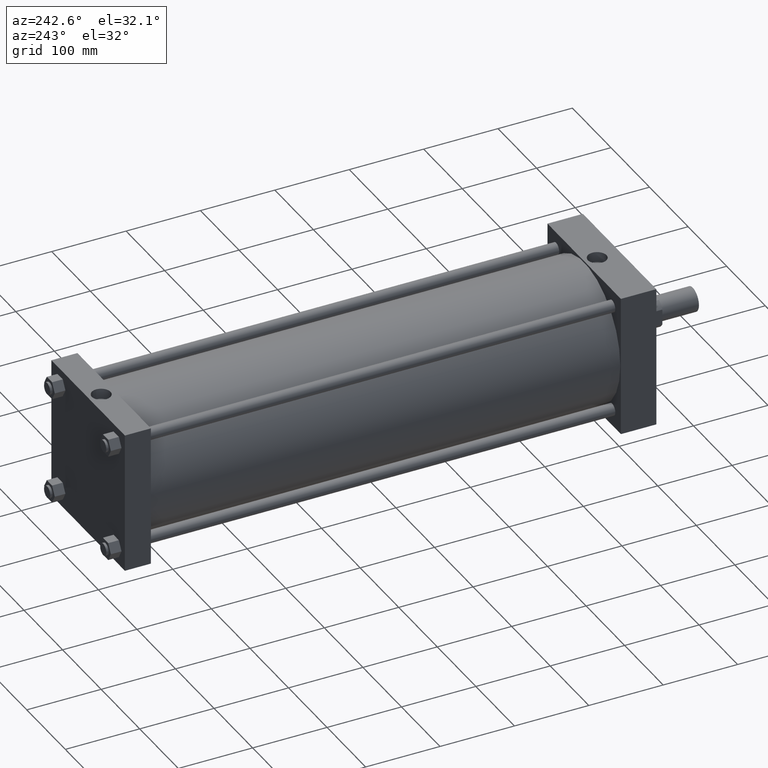
[diagram: clean part render]
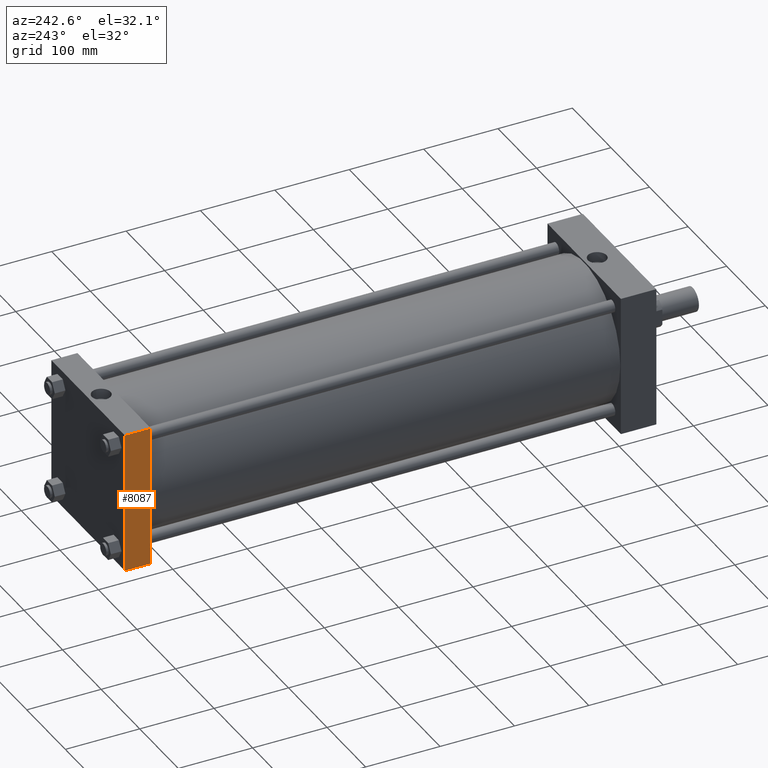
[diagram: same view with one face highlighted and labeled with its STEP entity id]
A machine part, auxiliary view. The second image highlights one B-rep face of the part: STEP entity #8087.
In plain terms, the highlighted planar face has unit normal (-1, 0, 0).
Its self-contained STEP definition (entity closure, byte-faithful):
#2335=VERTEX_POINT('',#2337);
#2337=CARTESIAN_POINT('',(-9.525000000E+001,7.270750000E+002,-9.525000000E+001));
#2350=VERTEX_POINT('',#2351);
#2351=CARTESIAN_POINT('',(-9.525000000E+001,7.270750000E+002,9.525000000E+001));
#2352=EDGE_CURVE('',#2350,#2335,#2353,.T.);
#2353=LINE('',#2354,#2355);
#2354=CARTESIAN_POINT('',(-9.525000000E+001,7.270750000E+002,9.525000000E+001));
#2355=VECTOR('',#2356,1.0E+000);
#2356=DIRECTION('',(0.0E+000,0.0E+000,-1.0E+000));
#2588=VERTEX_POINT('',#2589);
#2589=CARTESIAN_POINT('',(-9.525000000E+001,7.620000000E+002,-9.525000000E+001));
#2590=EDGE_CURVE('',#2595,#2588,#2591,.T.);
#2591=LINE('',#2592,#2593);
#2592=CARTESIAN_POINT('',(-9.525000000E+001,7.620000000E+002,9.525000000E+001));
#2593=VECTOR('',#2594,1.0E+000);
#2594=DIRECTION('',(0.0E+000,0.0E+000,-1.0E+000));
#2595=VERTEX_POINT('',#2596);
#2596=CARTESIAN_POINT('',(-9.525000000E+001,7.620000000E+002,9.525000000E+001));
#2715=EDGE_CURVE('',#2335,#2588,#2716,.T.);
#2716=LINE('',#2717,#2718);
#2717=CARTESIAN_POINT('',(-9.525000000E+001,7.620000000E+002,-9.525000000E+001));
#2718=VECTOR('',#2719,1.0E+000);
#2719=DIRECTION('',(0.0E+000,1.0E+000,0.0E+000));
#2769=EDGE_CURVE('',#2595,#2350,#2770,.T.);
#2770=LINE('',#2771,#2772);
#2771=CARTESIAN_POINT('',(-9.525000000E+001,7.620000000E+002,9.525000000E+001));
#2772=VECTOR('',#2773,1.0E+000);
#2773=DIRECTION('',(0.0E+000,-1.0E+000,0.0E+000));
#2784=FACE_OUTER_BOUND('',#2786,.T.);
#2785=FACE_BOUND('',#2787,.T.);
#2786=EDGE_LOOP('',(#2788));
#2787=EDGE_LOOP('',(#2797,#2798,#2799,#2800));
#2788=ORIENTED_EDGE('',*,*,#2789,.T.);
#2789=EDGE_CURVE('',#2795,#2795,#2790,.T.);
#2790=CIRCLE('',#2791,7.540625000E+000);
#2791=AXIS2_PLACEMENT_3D('',#2792,#2793,#2794);
#2792=CARTESIAN_POINT('',(-9.525000000E+001,7.389799800E+002,0.000000000E+000));
#2793=DIRECTION('',(1.0E+000,0.0E+000,0.0E+000));
#2794=DIRECTION('',(0.0E+000,0.0E+000,1.0E+000));
#2795=VERTEX_POINT('',#2796);
#2796=CARTESIAN_POINT('',(-9.525000000E+001,7.314393550E+002,0.000000000E+000));
#2797=ORIENTED_EDGE('',*,*,#2715,.F.);
#2798=ORIENTED_EDGE('',*,*,#2352,.F.);
#2799=ORIENTED_EDGE('',*,*,#2769,.F.);
#2800=ORIENTED_EDGE('',*,*,#2590,.T.);
#2801=PLANE('',#2802);
#2802=AXIS2_PLACEMENT_3D('',#2803,#2804,#2805);
#2803=CARTESIAN_POINT('',(-9.525000000E+001,7.620000000E+002,9.525000000E+001));
#2804=DIRECTION('',(-1.0E+000,0.0E+000,0.0E+000));
#2805=DIRECTION('',(0.0E+000,0.0E+000,1.0E+000));
#8087=ADVANCED_FACE('',(#2784,#2785),#2801,.T.);